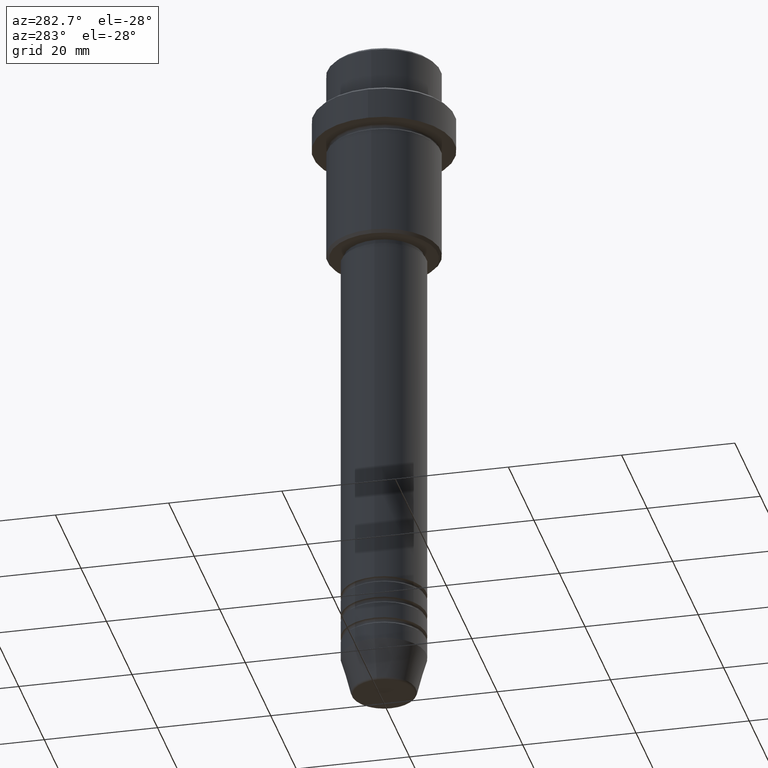
[diagram: clean part render]
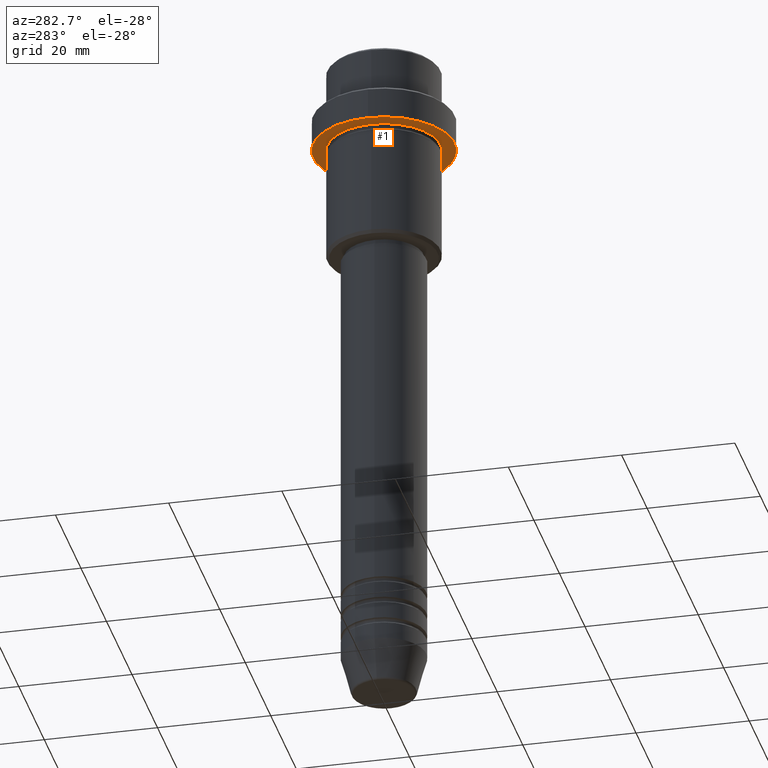
[diagram: same view with one face highlighted and labeled with its STEP entity id]
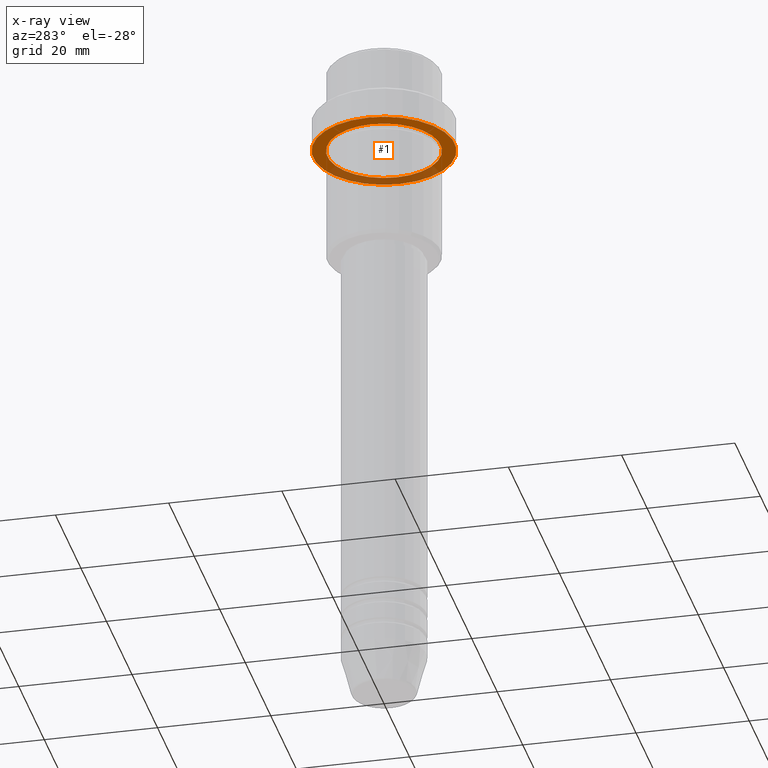
[diagram: x-ray of the same camera — body ghosted, the highlighted face saturated]
A machine part, auxiliary view. The second image highlights one B-rep face of the part: STEP entity #1.
The next image is the same camera in x-ray: the body ghosted, the highlighted face saturated — about 29% of this face is hidden behind the body in this view.
In plain terms, the highlighted planar face has unit normal (0, 0, -1).
Its self-contained STEP definition (entity closure, byte-faithful):
#1 = ADVANCED_FACE ( 'NONE', ( #47, #395 ), #831, .T. ) ;
#7 = AXIS2_PLACEMENT_3D ( 'NONE', #1108, #781, #452 ) ;
#27 = ORIENTED_EDGE ( 'NONE', *, *, #1229, .T. ) ;
#45 = CARTESIAN_POINT ( 'NONE',  ( -9.999999999999992895, 0.000000000000000000, -15.00000000000000000 ) ) ;
#47 = FACE_BOUND ( 'NONE', #783, .T. ) ;
#80 = CARTESIAN_POINT ( 'NONE',  ( 0.000000000000000000, 0.000000000000000000, -15.00000000000000000 ) ) ;
#99 = CARTESIAN_POINT ( 'NONE',  ( 12.50000000000000000, 0.000000000000000000, -15.00000000000000000 ) ) ;
#146 = VERTEX_POINT ( 'NONE', #1308 ) ;
#228 = ORIENTED_EDGE ( 'NONE', *, *, #745, .F. ) ;
#251 = CIRCLE ( 'NONE', #1327, 9.999999999999992895 ) ;
#308 = DIRECTION ( 'NONE',  ( -1.000000000000000000, 0.000000000000000000, 0.000000000000000000 ) ) ;
#395 = FACE_OUTER_BOUND ( 'NONE', #867, .T. ) ;
#426 = DIRECTION ( 'NONE',  ( -1.000000000000000000, 0.000000000000000000, -0.000000000000000000 ) ) ;
#452 = DIRECTION ( 'NONE',  ( 1.000000000000000000, 0.000000000000000000, 0.000000000000000000 ) ) ;
#460 = VERTEX_POINT ( 'NONE', #530 ) ;
#467 = ORIENTED_EDGE ( 'NONE', *, *, #798, .F. ) ;
#530 = CARTESIAN_POINT ( 'NONE',  ( -12.50000000000000000, 1.530808498934191521E-15, -15.00000000000000000 ) ) ;
#587 = AXIS2_PLACEMENT_3D ( 'NONE', #923, #1358, #426 ) ;
#591 = AXIS2_PLACEMENT_3D ( 'NONE', #1020, #1217, #1222 ) ;
#603 = ORIENTED_EDGE ( 'NONE', *, *, #895, .T. ) ;
#648 = DIRECTION ( 'NONE',  ( -0.000000000000000000, -0.000000000000000000, 1.000000000000000000 ) ) ;
#652 = VERTEX_POINT ( 'NONE', #99 ) ;
#727 = CIRCLE ( 'NONE', #591, 12.50000000000000000 ) ;
#745 = EDGE_CURVE ( 'NONE', #460, #652, #1233, .T. ) ;
#781 = DIRECTION ( 'NONE',  ( -0.000000000000000000, -0.000000000000000000, 1.000000000000000000 ) ) ;
#783 = EDGE_LOOP ( 'NONE', ( #603, #27 ) ) ;
#798 = EDGE_CURVE ( 'NONE', #652, #460, #727, .T. ) ;
#831 = PLANE ( 'NONE',  #587 ) ;
#858 = CARTESIAN_POINT ( 'NONE',  ( 0.000000000000000000, 0.000000000000000000, -15.00000000000000000 ) ) ;
#867 = EDGE_LOOP ( 'NONE', ( #467, #228 ) ) ;
#895 = EDGE_CURVE ( 'NONE', #1019, #146, #1147, .T. ) ;
#923 = CARTESIAN_POINT ( 'NONE',  ( 0.000000000000000000, 12.50000000000000000, -15.00000000000000000 ) ) ;
#1019 = VERTEX_POINT ( 'NONE', #45 ) ;
#1020 = CARTESIAN_POINT ( 'NONE',  ( 0.000000000000000000, 0.000000000000000000, -15.00000000000000000 ) ) ;
#1108 = CARTESIAN_POINT ( 'NONE',  ( 0.000000000000000000, 0.000000000000000000, -15.00000000000000000 ) ) ;
#1147 = CIRCLE ( 'NONE', #1165, 9.999999999999992895 ) ;
#1165 = AXIS2_PLACEMENT_3D ( 'NONE', #858, #648, #1395 ) ;
#1177 = DIRECTION ( 'NONE',  ( -0.000000000000000000, -0.000000000000000000, 1.000000000000000000 ) ) ;
#1217 = DIRECTION ( 'NONE',  ( -0.000000000000000000, -0.000000000000000000, 1.000000000000000000 ) ) ;
#1222 = DIRECTION ( 'NONE',  ( 1.000000000000000000, 0.000000000000000000, 0.000000000000000000 ) ) ;
#1229 = EDGE_CURVE ( 'NONE', #146, #1019, #251, .T. ) ;
#1233 = CIRCLE ( 'NONE', #7, 12.50000000000000000 ) ;
#1308 = CARTESIAN_POINT ( 'NONE',  ( 9.999999999999992895, 1.224646799147352468E-15, -15.00000000000000000 ) ) ;
#1327 = AXIS2_PLACEMENT_3D ( 'NONE', #80, #1177, #308 ) ;
#1358 = DIRECTION ( 'NONE',  ( 0.000000000000000000, 0.000000000000000000, -1.000000000000000000 ) ) ;
#1395 = DIRECTION ( 'NONE',  ( -1.000000000000000000, 0.000000000000000000, 0.000000000000000000 ) ) ;